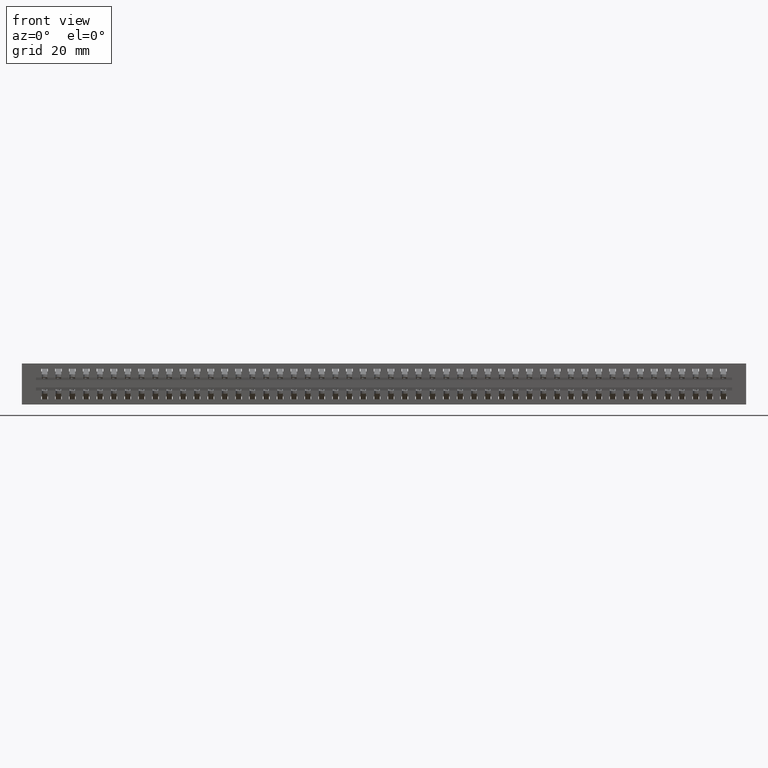
[diagram: clean part render]
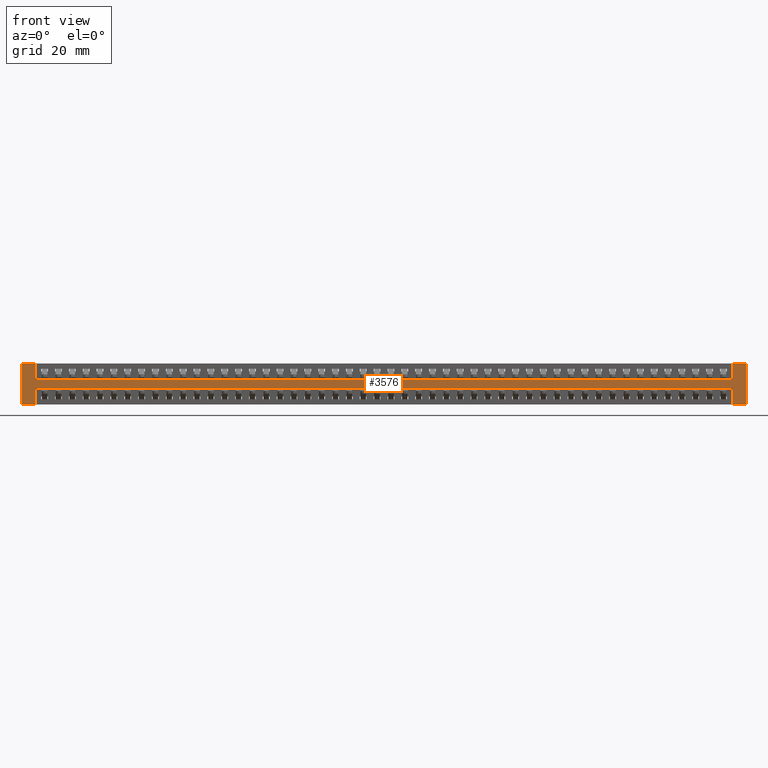
[diagram: same view with one face highlighted and labeled with its STEP entity id]
A machine part, front view. The second image highlights one B-rep face of the part: STEP entity #3576.
In plain terms, the highlighted planar face has unit normal (0, -1, 0).
Its self-contained STEP definition (entity closure, byte-faithful):
#923 = CARTESIAN_POINT ( 'NONE',  ( 6.797500000000002100, 0.0000000000000000000, 0.0000000000000000000 ) ) ;
#1404 = EDGE_CURVE ( 'NONE', #22680, #2682, #2839, .T. ) ;
#2298 = CARTESIAN_POINT ( 'NONE',  ( 6.797500000000002100, 0.0000000000000000000, -0.3699999999999989400 ) ) ;
#2338 = LINE ( 'NONE', #9936, #5050 ) ;
#2682 = VERTEX_POINT ( 'NONE', #4276 ) ;
#2839 = LINE ( 'NONE', #923, #15099 ) ;
#3231 = LINE ( 'NONE', #3278, #30814 ) ;
#3278 = CARTESIAN_POINT ( 'NONE',  ( 0.0000000000000000000, 0.0000000000000000000, -0.3700000000000001600 ) ) ;
#3576 = ADVANCED_FACE ( 'NONE', ( #6163 ), #8894, .T. ) ;
#4193 = CARTESIAN_POINT ( 'NONE',  ( 6.672499999999999400, 0.0000000000000000000, -0.3700000000000000000 ) ) ;
#4276 = CARTESIAN_POINT ( 'NONE',  ( 6.797499999999999400, 0.0000000000000000000, 0.0000000000000000000 ) ) ;
#4355 = VERTEX_POINT ( 'NONE', #19508 ) ;
#4376 = CARTESIAN_POINT ( 'NONE',  ( 6.672500000000001200, 0.0000000000000000000, 0.0000000000000000000 ) ) ;
#4390 = ORIENTED_EDGE ( 'NONE', *, *, #12837, .F. ) ;
#4637 = DIRECTION ( 'NONE',  ( 0.0000000000000000000, -1.000000000000000000, 0.0000000000000000000 ) ) ;
#4702 = CARTESIAN_POINT ( 'NONE',  ( 0.3874999999999997300, 0.0000000000000000000, -0.2200000000000000800 ) ) ;
#4980 = AXIS2_PLACEMENT_3D ( 'NONE', #19276, #4637, #11588 ) ;
#5024 = DIRECTION ( 'NONE',  ( -9.106159978880873500E-016, 0.0000000000000000000, -1.000000000000000000 ) ) ;
#5050 = VECTOR ( 'NONE', #12443, 39.37007874015748100 ) ;
#5212 = CARTESIAN_POINT ( 'NONE',  ( 0.3875000000000001800, 0.0000000000000000000, 0.0000000000000000000 ) ) ;
#5471 = EDGE_CURVE ( 'NONE', #26868, #21348, #15538, .T. ) ;
#5913 = DIRECTION ( 'NONE',  ( 0.0000000000000000000, 0.0000000000000000000, -1.000000000000000000 ) ) ;
#6163 = FACE_OUTER_BOUND ( 'NONE', #18623, .T. ) ;
#6607 = ORIENTED_EDGE ( 'NONE', *, *, #14169, .F. ) ;
#6693 = VERTEX_POINT ( 'NONE', #23828 ) ;
#7607 = VERTEX_POINT ( 'NONE', #30522 ) ;
#7645 = VERTEX_POINT ( 'NONE', #13587 ) ;
#8020 = LINE ( 'NONE', #23464, #27936 ) ;
#8255 = VECTOR ( 'NONE', #23614, 39.37007874015748100 ) ;
#8894 = PLANE ( 'NONE',  #4980 ) ;
#9843 = VERTEX_POINT ( 'NONE', #4193 ) ;
#9936 = CARTESIAN_POINT ( 'NONE',  ( 6.672500000000001200, 0.0000000000000000000, -0.3700000000000000000 ) ) ;
#10596 = VECTOR ( 'NONE', #26612, 39.37007874015748100 ) ;
#10746 = CARTESIAN_POINT ( 'NONE',  ( 0.0000000000000000000, 0.0000000000000000000, 0.0000000000000000000 ) ) ;
#11200 = VECTOR ( 'NONE', #31504, 39.37007874015748100 ) ;
#11516 = LINE ( 'NONE', #5212, #23368 ) ;
#11588 = DIRECTION ( 'NONE',  ( 0.0000000000000000000, -0.0000000000000000000, -1.000000000000000000 ) ) ;
#12443 = DIRECTION ( 'NONE',  ( 0.0000000000000000000, 0.0000000000000000000, 1.000000000000000000 ) ) ;
#12837 = EDGE_CURVE ( 'NONE', #22680, #9843, #30673, .T. ) ;
#13173 = EDGE_CURVE ( 'NONE', #17792, #7645, #11516, .T. ) ;
#13587 = CARTESIAN_POINT ( 'NONE',  ( 0.3875000000000000100, 0.0000000000000000000, -0.1500000000000000800 ) ) ;
#13626 = EDGE_CURVE ( 'NONE', #4355, #17792, #8020, .T. ) ;
#13922 = VECTOR ( 'NONE', #22667, 39.37007874015748100 ) ;
#14169 = EDGE_CURVE ( 'NONE', #7645, #7607, #22495, .T. ) ;
#14848 = CARTESIAN_POINT ( 'NONE',  ( 0.0000000000000000000, 0.0000000000000000000, -0.3700000000000001600 ) ) ;
#15099 = VECTOR ( 'NONE', #22943, 39.37007874015748100 ) ;
#15166 = DIRECTION ( 'NONE',  ( 1.000000000000000000, 0.0000000000000000000, 1.086653935427312100E-017 ) ) ;
#15206 = EDGE_CURVE ( 'NONE', #4355, #24335, #24788, .T. ) ;
#15538 = LINE ( 'NONE', #4702, #10596 ) ;
#15587 = CARTESIAN_POINT ( 'NONE',  ( 6.672500000000001200, 0.0000000000000000000, -0.2200000000000000000 ) ) ;
#15720 = CARTESIAN_POINT ( 'NONE',  ( 0.2624999999999999600, 0.0000000000000000000, -0.3700000000000001600 ) ) ;
#16030 = VECTOR ( 'NONE', #15166, 39.37007874015748100 ) ;
#16566 = LINE ( 'NONE', #10746, #13922 ) ;
#16625 = DIRECTION ( 'NONE',  ( 1.000000000000000000, 0.0000000000000000000, 0.0000000000000000000 ) ) ;
#16632 = CARTESIAN_POINT ( 'NONE',  ( 6.672500000000001200, 0.0000000000000000000, 0.0000000000000000000 ) ) ;
#16909 = VECTOR ( 'NONE', #29905, 39.37007874015748100 ) ;
#17707 = LINE ( 'NONE', #21869, #11200 ) ;
#17792 = VERTEX_POINT ( 'NONE', #20359 ) ;
#17929 = CARTESIAN_POINT ( 'NONE',  ( 0.2625000000000000100, 0.0000000000000000000, 0.0000000000000000000 ) ) ;
#18049 = ORIENTED_EDGE ( 'NONE', *, *, #1404, .T. ) ;
#18300 = VECTOR ( 'NONE', #5913, 39.37007874015748100 ) ;
#18623 = EDGE_LOOP ( 'NONE', ( #18049, #25662, #27170, #6607, #18968, #31378, #27424, #19252, #20257, #31465, #26220, #4390 ) ) ;
#18968 = ORIENTED_EDGE ( 'NONE', *, *, #13173, .F. ) ;
#19252 = ORIENTED_EDGE ( 'NONE', *, *, #29212, .F. ) ;
#19276 = CARTESIAN_POINT ( 'NONE',  ( -1.321351533372425100E-033, 0.0000000000000000000, -0.3700000000000001600 ) ) ;
#19508 = CARTESIAN_POINT ( 'NONE',  ( 0.2625000000000000100, 0.0000000000000000000, 0.0000000000000000000 ) ) ;
#20257 = ORIENTED_EDGE ( 'NONE', *, *, #31531, .F. ) ;
#20359 = CARTESIAN_POINT ( 'NONE',  ( 0.3875000000000001800, 0.0000000000000000000, 0.0000000000000000000 ) ) ;
#20476 = DIRECTION ( 'NONE',  ( -1.000000000000000000, -0.0000000000000000000, -1.934736539422282400E-017 ) ) ;
#20998 = EDGE_CURVE ( 'NONE', #28233, #2682, #16566, .T. ) ;
#21348 = VERTEX_POINT ( 'NONE', #28468 ) ;
#21598 = EDGE_CURVE ( 'NONE', #9843, #26868, #2338, .T. ) ;
#21869 = CARTESIAN_POINT ( 'NONE',  ( 0.3874999999999999000, 0.0000000000000000000, -0.3700000000000001600 ) ) ;
#22011 = LINE ( 'NONE', #4376, #8255 ) ;
#22495 = LINE ( 'NONE', #31606, #16030 ) ;
#22667 = DIRECTION ( 'NONE',  ( 1.000000000000000000, 0.0000000000000000000, 0.0000000000000000000 ) ) ;
#22680 = VERTEX_POINT ( 'NONE', #2298 ) ;
#22943 = DIRECTION ( 'NONE',  ( -0.0000000000000000000, -0.0000000000000000000, 1.000000000000000000 ) ) ;
#23368 = VECTOR ( 'NONE', #5024, 39.37007874015748100 ) ;
#23464 = CARTESIAN_POINT ( 'NONE',  ( 0.0000000000000000000, 0.0000000000000000000, 0.0000000000000000000 ) ) ;
#23614 = DIRECTION ( 'NONE',  ( -0.0000000000000000000, -0.0000000000000000000, 1.000000000000000000 ) ) ;
#23828 = CARTESIAN_POINT ( 'NONE',  ( 0.3874999999999999000, 0.0000000000000000000, -0.3700000000000001600 ) ) ;
#24335 = VERTEX_POINT ( 'NONE', #15720 ) ;
#24788 = LINE ( 'NONE', #17929, #18300 ) ;
#25126 = EDGE_CURVE ( 'NONE', #7607, #28233, #22011, .T. ) ;
#25662 = ORIENTED_EDGE ( 'NONE', *, *, #20998, .F. ) ;
#26220 = ORIENTED_EDGE ( 'NONE', *, *, #21598, .F. ) ;
#26612 = DIRECTION ( 'NONE',  ( -1.000000000000000000, -0.0000000000000000000, -1.086653935427312100E-017 ) ) ;
#26868 = VERTEX_POINT ( 'NONE', #15587 ) ;
#27170 = ORIENTED_EDGE ( 'NONE', *, *, #25126, .F. ) ;
#27424 = ORIENTED_EDGE ( 'NONE', *, *, #15206, .T. ) ;
#27936 = VECTOR ( 'NONE', #16625, 39.37007874015748100 ) ;
#28233 = VERTEX_POINT ( 'NONE', #16632 ) ;
#28468 = CARTESIAN_POINT ( 'NONE',  ( 0.3874999999999997300, 0.0000000000000000000, -0.2200000000000000800 ) ) ;
#29212 = EDGE_CURVE ( 'NONE', #6693, #24335, #3231, .T. ) ;
#29905 = DIRECTION ( 'NONE',  ( -1.000000000000000000, -0.0000000000000000000, -1.934736539422282400E-017 ) ) ;
#30522 = CARTESIAN_POINT ( 'NONE',  ( 6.672500000000001200, 0.0000000000000000000, -0.1499999999999999900 ) ) ;
#30673 = LINE ( 'NONE', #14848, #16909 ) ;
#30814 = VECTOR ( 'NONE', #20476, 39.37007874015748100 ) ;
#31378 = ORIENTED_EDGE ( 'NONE', *, *, #13626, .F. ) ;
#31465 = ORIENTED_EDGE ( 'NONE', *, *, #5471, .F. ) ;
#31504 = DIRECTION ( 'NONE',  ( 9.106159978880873500E-016, -0.0000000000000000000, -1.000000000000000000 ) ) ;
#31531 = EDGE_CURVE ( 'NONE', #21348, #6693, #17707, .T. ) ;
#31606 = CARTESIAN_POINT ( 'NONE',  ( 0.3875000000000000100, 0.0000000000000000000, -0.1500000000000000800 ) ) ;